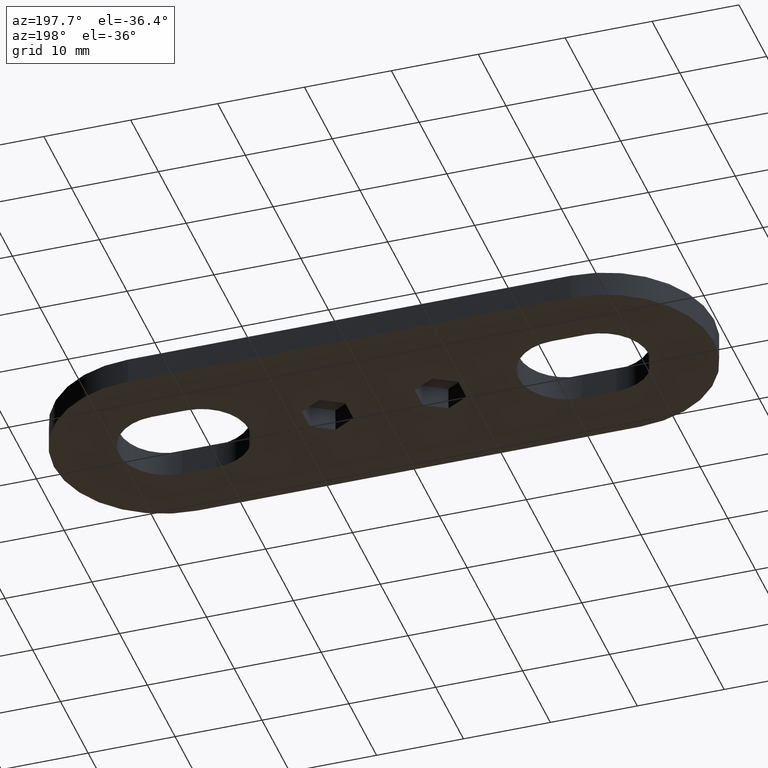
[diagram: clean part render]
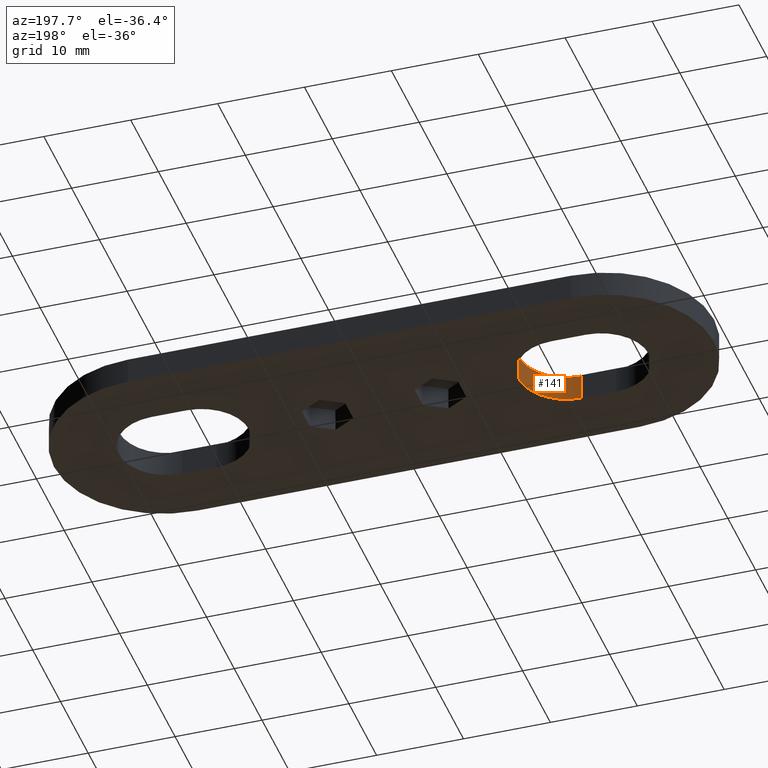
[diagram: same view with one face highlighted and labeled with its STEP entity id]
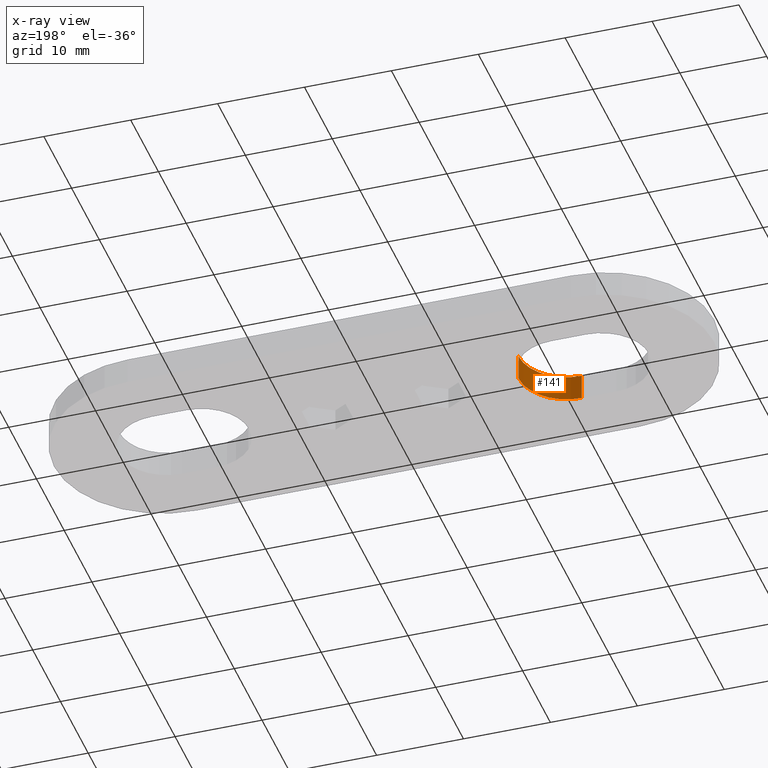
[diagram: x-ray of the same camera — body ghosted, the highlighted face saturated]
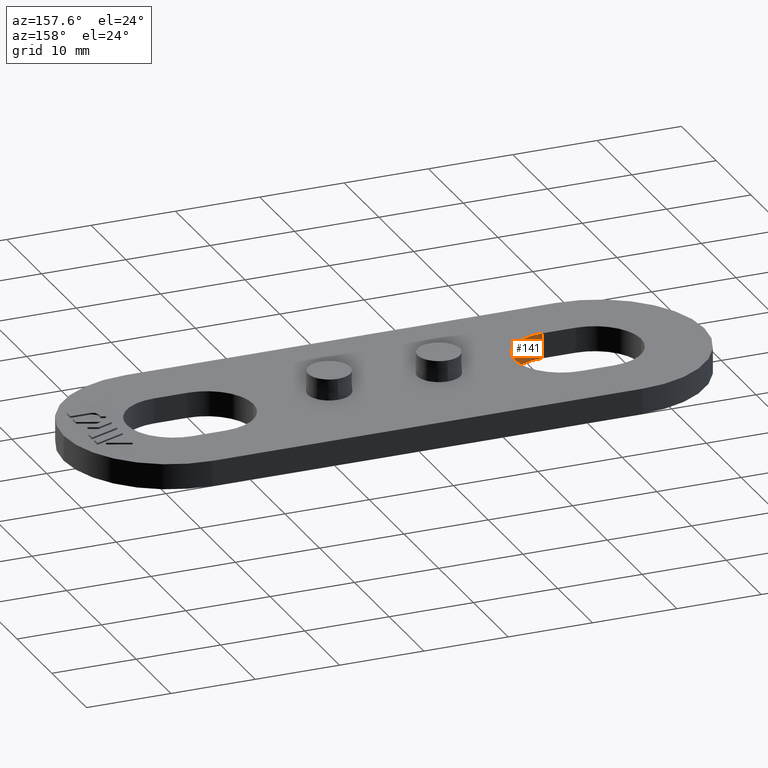
[diagram: same view with one face highlighted and labeled with its STEP entity id]
A machine part, auxiliary view. The second image highlights one B-rep face of the part: STEP entity #141.
The next image is the same camera in x-ray: the body ghosted, the highlighted face saturated — about 0% of this face is hidden behind the body in this view.
A second angle (auxiliary view) of the same face is appended — the face is thin or edge-on in the first view.
In plain terms, the highlighted cylindrical surface (partial cylindrical patch) has radius 5.5 mm, axis along (0, -0, -1).
Its self-contained STEP definition (entity closure, byte-faithful):
#141 = ADVANCED_FACE( '', ( #294 ), #295, .F. );
#294 = FACE_OUTER_BOUND( '', #451, .T. );
#295 = CYLINDRICAL_SURFACE( '', #452, 5.50000000000000 );
#451 = EDGE_LOOP( '', ( #995, #996, #997, #998 ) );
#452 = AXIS2_PLACEMENT_3D( '', #999, #1000, #1001 );
#995 = ORIENTED_EDGE( '', *, *, #1104, .F. );
#996 = ORIENTED_EDGE( '', *, *, #1205, .T. );
#997 = ORIENTED_EDGE( '', *, *, #1055, .T. );
#998 = ORIENTED_EDGE( '', *, *, #1204, .F. );
#999 = CARTESIAN_POINT( '', ( -21.0000000000000, -8.67362350291582E-016, -1.00000000224920E-005 ) );
#1000 = DIRECTION( '', ( 2.89524476100169E-048, -6.12303176911189E-017, -1.00000000000000 ) );
#1001 = DIRECTION( '', ( -3.21628574467825E-016, 1.00000000000000, -6.12303176911189E-017 ) );
#1055 = EDGE_CURVE( '', #1259, #1257, #1260, .T. );
#1104 = EDGE_CURVE( '', #1350, #1352, #1353, .T. );
#1204 = EDGE_CURVE( '', #1352, #1257, #1502, .T. );
#1205 = EDGE_CURVE( '', #1350, #1259, #1503, .T. );
#1257 = VERTEX_POINT( '', #1571 );
#1259 = VERTEX_POINT( '', #1573 );
#1260 = CIRCLE( '', #1574, 5.50000000000000 );
#1350 = VERTEX_POINT( '', #1699 );
#1352 = VERTEX_POINT( '', #1702 );
#1353 = CIRCLE( '', #1703, 5.50000000000000 );
#1502 = LINE( '', #1942, #1943 );
#1503 = LINE( '', #1944, #1945 );
#1571 = CARTESIAN_POINT( '', ( -15.5000000000000, -1.55103233921055E-015, 3.00000300003184 ) );
#1573 = CARTESIAN_POINT( '', ( -21.0000000000000, -5.50000000000000, 3.00000300003184 ) );
#1574 = AXIS2_PLACEMENT_3D( '', #1993, #1994, #1995 );
#1699 = CARTESIAN_POINT( '', ( -21.0000000000000, -5.50000000000000, 3.36766747301154E-016 ) );
#1702 = CARTESIAN_POINT( '', ( -15.5000000000000, -2.22275675513042E-015, 1.36100102266716E-031 ) );
#1703 = AXIS2_PLACEMENT_3D( '', #2068, #2069, #2070 );
#1942 = CARTESIAN_POINT( '', ( -15.5000000000000, -1.73472408827999E-015, -1.00000000224920E-005 ) );
#1943 = VECTOR( '', #2188, 1000.00000000000 );
#1944 = CARTESIAN_POINT( '', ( -21.0000000000000, -5.50000000000000, -1.00000000221553E-005 ) );
#1945 = VECTOR( '', #2189, 1000.00000000000 );
#1993 = CARTESIAN_POINT( '', ( -21.0000000000000, -6.83670601222145E-016, 3.00000300003184 ) );
#1994 = DIRECTION( '', ( -2.89524476100169E-048, 6.12303176911189E-017, 1.00000000000000 ) );
#1995 = DIRECTION( '', ( -3.09179962251014E-016, -1.00000000000000, 6.12303176911189E-017 ) );
#2068 = CARTESIAN_POINT( '', ( -21.0000000000000, -8.67361737988404E-016, 5.31088347701510E-032 ) );
#2069 = DIRECTION( '', ( 0.000000000000000, 6.12303176911189E-017, 1.00000000000000 ) );
#2070 = DIRECTION( '', ( 0.000000000000000, -1.00000000000000, 6.12303176911189E-017 ) );
#2188 = DIRECTION( '', ( 0.000000000000000, 6.12303176911189E-017, 1.00000000000000 ) );
#2189 = DIRECTION( '', ( 0.000000000000000, 6.12303176911189E-017, 1.00000000000000 ) );